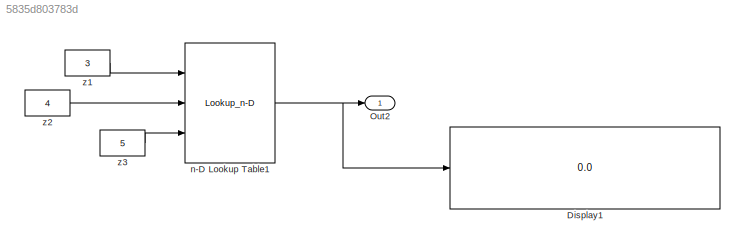
MODEL slx_5835d803783d
KIND model
CONFIG AbsTol = auto
CONFIG EnableMultiTasking = on
CONFIG FixedStep = 0.200000
CONFIG MaxStep = auto
CONFIG MinStep = auto
CONFIG RelTol = 1e-3
CONFIG SampleTimeConstraint = Unconstrained
CONFIG Solver = FixedStepDiscrete
CONFIG SolverName = FixedStepDiscrete
CONFIG StartTime = 0.0
CONFIG StopTime = 10.0
WORKSPACE source: MAT-file member
WORKSPACE T = [0.652225769628 0.345744878699 -0.344685690214 0.0307859462286 -0.133347855387 -0.626037347851 1.11143973329 1.2021662592 0.0723818568121 -1.0267475714 -1.17297048771 0.25100421714 ... (27 elements, 3x3x3)]
BLOCK [Display] Display1
  Decimation = 1
  Ports = [1]
BLOCK [Outport] Out2
  IconDisplay = Port number
BLOCK [Lookup_n-D] n-D Lookup Table1
  BreakpointsForDimension1 = [1 2 4]
  BreakpointsForDimension2 = [1 3 4]
  BreakpointsForDimension3 = [1 2 3 ]
  InternalRulePriority = Speed
  NumberOfTableDimensions = 3
  Ports = [3, 1]
  RndMeth = Simplest
  Table = T
BLOCK [Constant] z1
  Value = 3
BLOCK [Constant] z2
  Value = 4
BLOCK [Constant] z3
  Value = 5
NET n-D Lookup Table1:1 -> Display1:1, Out2:1
LINE z1:1 -> n-D Lookup Table1:1
LINE z2:1 -> n-D Lookup Table1:2
LINE z3:1 -> n-D Lookup Table1:3
note: NET lines group one-source signal fan-out (src -> all destinations, sorted); 1:1 wires keep LINE
